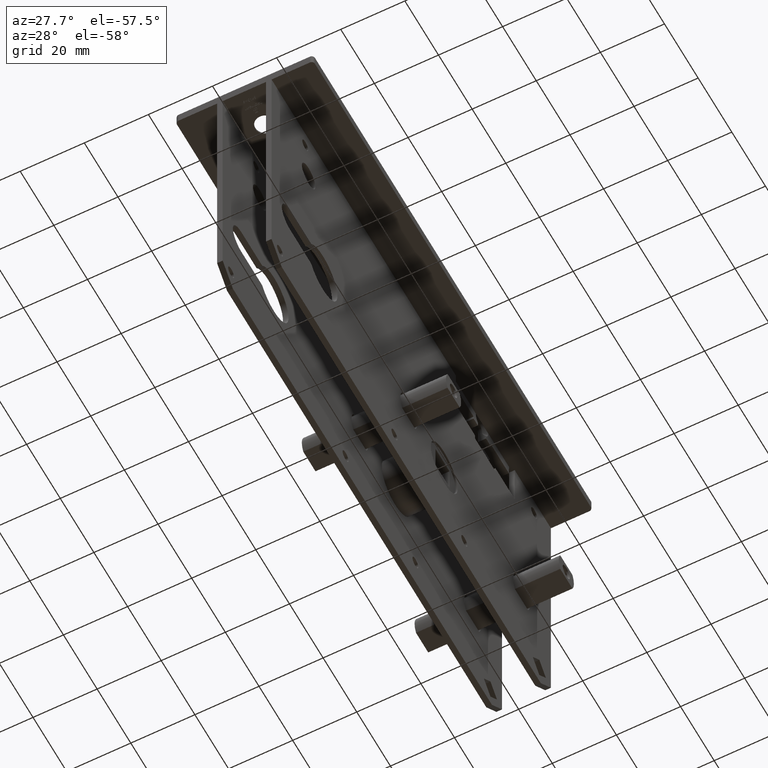
[diagram: clean part render]
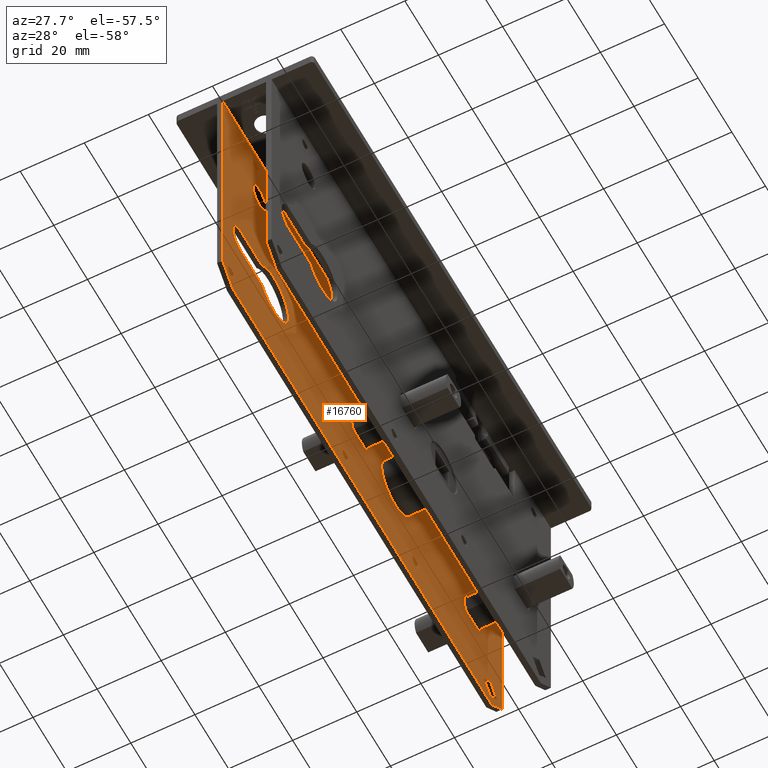
[diagram: same view with one face highlighted and labeled with its STEP entity id]
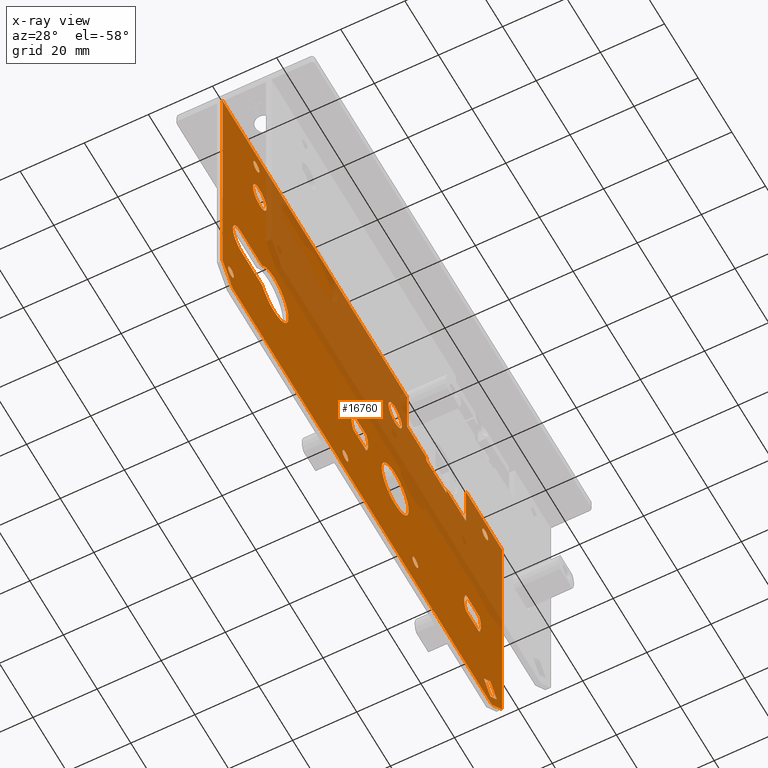
[diagram: x-ray of the same camera — body ghosted, the highlighted face saturated]
A machine part, auxiliary view. The second image highlights one B-rep face of the part: STEP entity #16760.
The next image is the same camera in x-ray: the body ghosted, the highlighted face saturated — about 40% of this face is hidden behind the body in this view.
In plain terms, the highlighted planar face has unit normal (-1, -0, 0).
Its self-contained STEP definition (entity closure, byte-faithful):
#20 = CARTESIAN_POINT ( 'NONE',  ( -6.749999999999976907, 2.428203230275483016, -54.49999999999999289 ) ) ;
#37 = VECTOR ( 'NONE', #3341, 1000.000000000000000 ) ;
#58 = ORIENTED_EDGE ( 'NONE', *, *, #6565, .T. ) ;
#85 = CARTESIAN_POINT ( 'NONE',  ( -6.749999999999975131, -64.75000000000001421, -7.500000000000007105 ) ) ;
#91 = DIRECTION ( 'NONE',  ( 0.000000000000000000, -1.000000000000000000, 0.000000000000000000 ) ) ;
#195 = CIRCLE ( 'NONE', #10051, 8.000000000000000000 ) ;
#261 = EDGE_CURVE ( 'NONE', #5920, #5920, #5274, .T. ) ;
#288 = AXIS2_PLACEMENT_3D ( 'NONE', #3002, #12196, #6062 ) ;
#364 = DIRECTION ( 'NONE',  ( -1.000000000000000000, -4.033302664442710394E-17, -0.000000000000000000 ) ) ;
#378 = CARTESIAN_POINT ( 'NONE',  ( -6.749999999999978684, 37.99500000000001876, -16.50000000000000000 ) ) ;
#432 = ORIENTED_EDGE ( 'NONE', *, *, #1139, .T. ) ;
#462 = EDGE_CURVE ( 'NONE', #2710, #15096, #10442, .T. ) ;
#503 = CARTESIAN_POINT ( 'NONE',  ( -6.749999999999979572, 82.99999999999998579, -1.500000000000000000 ) ) ;
#560 = DIRECTION ( 'NONE',  ( 0.000000000000000000, -1.000000000000000000, 0.000000000000000000 ) ) ;
#572 = LINE ( 'NONE', #916, #7490 ) ;
#636 = CARTESIAN_POINT ( 'NONE',  ( -6.749999999999978684, -71.90000000000000568, -53.45000000000000284 ) ) ;
#637 = EDGE_CURVE ( 'NONE', #5451, #17248, #14037, .T. ) ;
#663 = CARTESIAN_POINT ( 'NONE',  ( -6.749999999999978684, 37.99500000000001876, -89.50000000000000000 ) ) ;
#711 = VERTEX_POINT ( 'NONE', #11974 ) ;
#896 = EDGE_LOOP ( 'NONE', ( #7330 ) ) ;
#916 = CARTESIAN_POINT ( 'NONE',  ( -6.749999999999979572, 82.99999999999998579, -62.49999999999998579 ) ) ;
#917 = CARTESIAN_POINT ( 'NONE',  ( -6.749999999999979572, 68.49999999999997158, -58.49999999999999289 ) ) ;
#926 = AXIS2_PLACEMENT_3D ( 'NONE', #7827, #1676, #17077 ) ;
#959 = EDGE_LOOP ( 'NONE', ( #12661, #9739, #12631, #4550 ) ) ;
#960 = EDGE_CURVE ( 'NONE', #5687, #12507, #17785, .T. ) ;
#1014 = EDGE_CURVE ( 'NONE', #9640, #17106, #14490, .T. ) ;
#1072 = DIRECTION ( 'NONE',  ( -1.000000000000000000, -4.033302664442710394E-17, -0.000000000000000000 ) ) ;
#1086 = CARTESIAN_POINT ( 'NONE',  ( -6.749999999999979572, 82.99999999999998579, -54.49999999999999289 ) ) ;
#1109 = VERTEX_POINT ( 'NONE', #10029 ) ;
#1139 = EDGE_CURVE ( 'NONE', #10448, #9412, #7075, .T. ) ;
#1350 = CIRCLE ( 'NONE', #11359, 4.000000000000000000 ) ;
#1475 = DIRECTION ( 'NONE',  ( -1.000000000000000000, -4.033302664442710394E-17, 0.000000000000000000 ) ) ;
#1551 = ORIENTED_EDGE ( 'NONE', *, *, #8096, .T. ) ;
#1636 = VECTOR ( 'NONE', #4209, 1000.000000000000000 ) ;
#1676 = DIRECTION ( 'NONE',  ( -1.000000000000000000, -4.033302664442710394E-17, -0.000000000000000000 ) ) ;
#1804 = ORIENTED_EDGE ( 'NONE', *, *, #16912, .T. ) ;
#1968 = LINE ( 'NONE', #3349, #7936 ) ;
#2034 = VERTEX_POINT ( 'NONE', #6817 ) ;
#2048 = VECTOR ( 'NONE', #9706, 1000.000000000000000 ) ;
#2085 = VECTOR ( 'NONE', #17384, 1000.000000000000000 ) ;
#2097 = CARTESIAN_POINT ( 'NONE',  ( -6.749999999999976907, -11.75000000000001954, -82.49999999999998579 ) ) ;
#2249 = VERTEX_POINT ( 'NONE', #15557 ) ;
#2436 = CIRCLE ( 'NONE', #288, 7.999999999999998224 ) ;
#2451 = CARTESIAN_POINT ( 'NONE',  ( -6.749999999999979572, 82.99999999999998579, -89.50000000000000000 ) ) ;
#2461 = VECTOR ( 'NONE', #13312, 1000.000000000000000 ) ;
#2478 = EDGE_CURVE ( 'NONE', #10256, #5451, #11801, .T. ) ;
#2552 = CARTESIAN_POINT ( 'NONE',  ( -6.749999999999983125, 79.99999999999998579, -82.61091270347398563 ) ) ;
#2644 = CARTESIAN_POINT ( 'NONE',  ( -6.749999999999978684, 69.42820323027548568, -54.49999999999999289 ) ) ;
#2710 = VERTEX_POINT ( 'NONE', #636 ) ;
#2741 = ORIENTED_EDGE ( 'NONE', *, *, #12353, .F. ) ;
#2787 = ORIENTED_EDGE ( 'NONE', *, *, #7247, .T. ) ;
#2811 = CARTESIAN_POINT ( 'NONE',  ( -6.749999999999984901, 26.49500000000001876, -89.50000000000000000 ) ) ;
#2851 = DIRECTION ( 'NONE',  ( 0.000000000000000000, -1.000000000000000000, 0.000000000000000000 ) ) ;
#2919 = DIRECTION ( 'NONE',  ( -1.000000000000000000, -4.033302664442710394E-17, -0.000000000000000000 ) ) ;
#2987 = CIRCLE ( 'NONE', #926, 1.749999999999996447 ) ;
#3002 = CARTESIAN_POINT ( 'NONE',  ( -6.749999999999978684, 19.49999999999997513, -58.50000000000000000 ) ) ;
#3015 = AXIS2_PLACEMENT_3D ( 'NONE', #12429, #18777, #3506 ) ;
#3051 = EDGE_CURVE ( 'NONE', #15689, #15689, #2987, .T. ) ;
#3313 = CARTESIAN_POINT ( 'NONE',  ( -6.749999999999978684, 31.49999999999997868, -79.50000000000000000 ) ) ;
#3327 = VERTEX_POINT ( 'NONE', #85 ) ;
#3341 = DIRECTION ( 'NONE',  ( 4.033302664442710394E-17, -1.000000000000000000, 0.000000000000000000 ) ) ;
#3349 = CARTESIAN_POINT ( 'NONE',  ( -6.749999999999975131, 500000.0000000000582, -16.50000000000000000 ) ) ;
#3372 = DIRECTION ( 'NONE',  ( 2.851975664605210409E-17, -0.7071067811865474617, 0.7071067811865474617 ) ) ;
#3506 = DIRECTION ( 'NONE',  ( 0.000000000000000000, -1.000000000000000000, 0.000000000000000000 ) ) ;
#3517 = AXIS2_PLACEMENT_3D ( 'NONE', #917, #17923, #19243 ) ;
#3701 = VERTEX_POINT ( 'NONE', #16849 ) ;
#3750 = VERTEX_POINT ( 'NONE', #13819 ) ;
#3794 = DIRECTION ( 'NONE',  ( -4.033302664442710394E-17, 1.000000000000000000, 0.000000000000000000 ) ) ;
#4018 = VERTEX_POINT ( 'NONE', #15110 ) ;
#4166 = CARTESIAN_POINT ( 'NONE',  ( -6.749999999999979572, 76.11091270347397142, -78.72182540694797126 ) ) ;
#4203 = DIRECTION ( 'NONE',  ( -4.033302664442710394E-17, 1.000000000000000000, -8.832147291193703580E-16 ) ) ;
#4209 = DIRECTION ( 'NONE',  ( -0.000000000000000000, -0.000000000000000000, 1.000000000000000000 ) ) ;
#4327 = CARTESIAN_POINT ( 'NONE',  ( -6.749999999999975131, 500000.0000000000582, -16.50000000000000000 ) ) ;
#4331 = CARTESIAN_POINT ( 'NONE',  ( -6.749999999999979572, 71.25000000000000000, -7.500000000000007105 ) ) ;
#4400 = VERTEX_POINT ( 'NONE', #9330 ) ;
#4427 = DIRECTION ( 'NONE',  ( -4.033302664442710394E-17, 1.000000000000000000, 0.000000000000000000 ) ) ;
#4507 = CARTESIAN_POINT ( 'NONE',  ( -6.749999999999979572, 78.05545635173697860, -84.55545635173699281 ) ) ;
#4550 = ORIENTED_EDGE ( 'NONE', *, *, #5790, .T. ) ;
#4569 = ORIENTED_EDGE ( 'NONE', *, *, #3051, .T. ) ;
#4652 = VECTOR ( 'NONE', #13139, 1000.000000000000000 ) ;
#5043 = ORIENTED_EDGE ( 'NONE', *, *, #7267, .T. ) ;
#5165 = CARTESIAN_POINT ( 'NONE',  ( -6.749999999999978684, 61.49500000000001876, -89.50000000000000000 ) ) ;
#5213 = CARTESIAN_POINT ( 'NONE',  ( -6.749999999999975131, -52.50000000000002132, -58.50000000000000000 ) ) ;
#5274 = CIRCLE ( 'NONE', #12561, 4.000000000000003553 ) ;
#5317 = LINE ( 'NONE', #10474, #13938 ) ;
#5451 = VERTEX_POINT ( 'NONE', #16311 ) ;
#5682 = VERTEX_POINT ( 'NONE', #12536 ) ;
#5687 = VERTEX_POINT ( 'NONE', #15794 ) ;
#5701 = LINE ( 'NONE', #2811, #1636 ) ;
#5725 = DIRECTION ( 'NONE',  ( 4.033302664442710394E-17, -1.000000000000000000, -1.766429458238740716E-15 ) ) ;
#5790 = EDGE_CURVE ( 'NONE', #9402, #9106, #19450, .T. ) ;
#5834 = ORIENTED_EDGE ( 'NONE', *, *, #17071, .T. ) ;
#5877 = EDGE_LOOP ( 'NONE', ( #13785, #7149, #6720, #18267 ) ) ;
#5920 = VERTEX_POINT ( 'NONE', #10025 ) ;
#6034 = DIRECTION ( 'NONE',  ( 4.033302664442710394E-17, -1.000000000000000000, -2.891205793294678326E-16 ) ) ;
#6045 = CARTESIAN_POINT ( 'NONE',  ( -6.749999999999976907, -4.500000000000025757, -58.50000000000000000 ) ) ;
#6055 = CARTESIAN_POINT ( 'NONE',  ( -6.749999999999975131, -61.00000000000001421, -20.50000000000000355 ) ) ;
#6062 = DIRECTION ( 'NONE',  ( 0.000000000000000000, -1.000000000000000000, 0.000000000000000000 ) ) ;
#6097 = DIRECTION ( 'NONE',  ( -1.000000000000000000, -4.033302664442710394E-17, -0.000000000000000000 ) ) ;
#6164 = LINE ( 'NONE', #663, #2085 ) ;
#6169 = CARTESIAN_POINT ( 'NONE',  ( -6.749999999999979572, 62.49999999999997158, -58.49999999999999289 ) ) ;
#6170 = EDGE_CURVE ( 'NONE', #19524, #711, #1968, .T. ) ;
#6278 = LINE ( 'NONE', #8612, #12475 ) ;
#6326 = ORIENTED_EDGE ( 'NONE', *, *, #8069, .F. ) ;
#6344 = EDGE_CURVE ( 'NONE', #16661, #12989, #5317, .T. ) ;
#6419 = CARTESIAN_POINT ( 'NONE',  ( -6.749999999999978684, 61.49500000000001876, -1.500000000000000000 ) ) ;
#6454 = VERTEX_POINT ( 'NONE', #503 ) ;
#6517 = AXIS2_PLACEMENT_3D ( 'NONE', #6169, #6097, #91 ) ;
#6529 = DIRECTION ( 'NONE',  ( 4.033302664442710394E-17, -1.000000000000000000, 0.000000000000000000 ) ) ;
#6551 = ORIENTED_EDGE ( 'NONE', *, *, #6170, .T. ) ;
#6565 = EDGE_CURVE ( 'NONE', #18912, #5682, #6278, .T. ) ;
#6583 = DIRECTION ( 'NONE',  ( -1.000000000000000000, -4.033302664442710394E-17, -0.000000000000000000 ) ) ;
#6682 = EDGE_CURVE ( 'NONE', #3701, #9402, #18924, .T. ) ;
#6684 = ORIENTED_EDGE ( 'NONE', *, *, #13114, .T. ) ;
#6720 = ORIENTED_EDGE ( 'NONE', *, *, #12131, .T. ) ;
#6769 = LINE ( 'NONE', #16784, #18947 ) ;
#6817 = CARTESIAN_POINT ( 'NONE',  ( -6.749999999999981348, 69.42820323027548568, -62.49999999999998579 ) ) ;
#7075 = LINE ( 'NONE', #13500, #17310 ) ;
#7095 = AXIS2_PLACEMENT_3D ( 'NONE', #15466, #18464, #9392 ) ;
#7097 = ORIENTED_EDGE ( 'NONE', *, *, #9711, .T. ) ;
#7149 = ORIENTED_EDGE ( 'NONE', *, *, #9530, .T. ) ;
#7175 = LINE ( 'NONE', #8178, #12195 ) ;
#7217 = ORIENTED_EDGE ( 'NONE', *, *, #18558, .T. ) ;
#7247 = EDGE_CURVE ( 'NONE', #17570, #16303, #11985, .T. ) ;
#7267 = EDGE_CURVE ( 'NONE', #9412, #3750, #16042, .T. ) ;
#7330 = ORIENTED_EDGE ( 'NONE', *, *, #18299, .T. ) ;
#7490 = VECTOR ( 'NONE', #13205, 1000.000000000000000 ) ;
#7533 = EDGE_LOOP ( 'NONE', ( #4569 ) ) ;
#7718 = EDGE_LOOP ( 'NONE', ( #6684 ) ) ;
#7735 = LINE ( 'NONE', #17659, #19201 ) ;
#7749 = CARTESIAN_POINT ( 'NONE',  ( -6.749999999999978684, 11.49999999999997691, -58.50000000000000000 ) ) ;
#7750 = EDGE_LOOP ( 'NONE', ( #12466 ) ) ;
#7827 = CARTESIAN_POINT ( 'NONE',  ( -6.749999999999976907, -10.00000000000002309, -82.49999999999998579 ) ) ;
#7919 = VECTOR ( 'NONE', #19806, 1000.000000000000114 ) ;
#7936 = VECTOR ( 'NONE', #12471, 1000.000000000000000 ) ;
#8033 = ORIENTED_EDGE ( 'NONE', *, *, #261, .T. ) ;
#8069 = EDGE_CURVE ( 'NONE', #5687, #4400, #19375, .T. ) ;
#8096 = EDGE_CURVE ( 'NONE', #6454, #17106, #7175, .T. ) ;
#8097 = CIRCLE ( 'NONE', #3015, 1.750000000000001554 ) ;
#8164 = AXIS2_PLACEMENT_3D ( 'NONE', #9726, #6583, #560 ) ;
#8178 = CARTESIAN_POINT ( 'NONE',  ( -6.749999999999979572, 82.99999999999998579, -1.500000000000000000 ) ) ;
#8300 = CIRCLE ( 'NONE', #6517, 8.000000000000007105 ) ;
#8305 = CARTESIAN_POINT ( 'NONE',  ( -6.749999999999979572, -5.428203230275520319, -54.49999999999997868 ) ) ;
#8562 = FACE_BOUND ( 'NONE', #11112, .T. ) ;
#8595 = DIRECTION ( 'NONE',  ( 1.120265522029953459E-16, 0.7071067811865466846, -0.7071067811865483499 ) ) ;
#8612 = CARTESIAN_POINT ( 'NONE',  ( -6.749999999999979572, 82.99999999999998579, -63.55000000000001137 ) ) ;
#8670 = VECTOR ( 'NONE', #3372, 1000.000000000000114 ) ;
#8683 = DIRECTION ( 'NONE',  ( 4.033302664442710394E-17, -1.000000000000000000, 0.000000000000000000 ) ) ;
#8689 = LINE ( 'NONE', #2451, #4652 ) ;
#8889 = VECTOR ( 'NONE', #4203, 1000.000000000000000 ) ;
#8950 = ORIENTED_EDGE ( 'NONE', *, *, #18797, .T. ) ;
#8964 = EDGE_LOOP ( 'NONE', ( #16809 ) ) ;
#9061 = FACE_BOUND ( 'NONE', #7533, .T. ) ;
#9106 = VERTEX_POINT ( 'NONE', #8305 ) ;
#9140 = EDGE_CURVE ( 'NONE', #9733, #9733, #11791, .T. ) ;
#9214 = CARTESIAN_POINT ( 'NONE',  ( -6.749999999999973355, -79.75000000000002842, -82.49999999999998579 ) ) ;
#9226 = DIRECTION ( 'NONE',  ( -1.000000000000000000, -4.033302664442710394E-17, -0.000000000000000000 ) ) ;
#9238 = PLANE ( 'NONE',  #17536 ) ;
#9284 = DIRECTION ( 'NONE',  ( 0.000000000000000000, -1.000000000000000000, 0.000000000000000000 ) ) ;
#9330 = CARTESIAN_POINT ( 'NONE',  ( -6.750000000000001776, -76.99999999999998579, -89.50000000000000000 ) ) ;
#9356 = CARTESIAN_POINT ( 'NONE',  ( -6.749999999999973355, -71.90000000000000568, -58.50000000000000000 ) ) ;
#9392 = DIRECTION ( 'NONE',  ( 0.000000000000000000, -1.000000000000000000, 0.000000000000000000 ) ) ;
#9402 = VERTEX_POINT ( 'NONE', #12028 ) ;
#9412 = VERTEX_POINT ( 'NONE', #15054 ) ;
#9457 = ORIENTED_EDGE ( 'NONE', *, *, #1014, .F. ) ;
#9530 = EDGE_CURVE ( 'NONE', #17248, #2034, #8300, .T. ) ;
#9567 = DIRECTION ( 'NONE',  ( 0.000000000000000000, -1.000000000000000000, 0.000000000000000000 ) ) ;
#9616 = DIRECTION ( 'NONE',  ( -1.000000000000000000, -4.033302664442710394E-17, -0.000000000000000000 ) ) ;
#9640 = VERTEX_POINT ( 'NONE', #16138 ) ;
#9699 = CIRCLE ( 'NONE', #16141, 8.650000000000005684 ) ;
#9706 = DIRECTION ( 'NONE',  ( -0.000000000000000000, -0.000000000000000000, 1.000000000000000000 ) ) ;
#9711 = EDGE_CURVE ( 'NONE', #14751, #14751, #1350, .T. ) ;
#9726 = CARTESIAN_POINT ( 'NONE',  ( -6.749999999999979572, 73.00000000000000000, -7.500000000000007105 ) ) ;
#9733 = VERTEX_POINT ( 'NONE', #4331 ) ;
#9734 = CARTESIAN_POINT ( 'NONE',  ( -6.749999999999979572, 82.99999999999998579, -53.45000000000000284 ) ) ;
#9739 = ORIENTED_EDGE ( 'NONE', *, *, #19456, .T. ) ;
#9955 = VECTOR ( 'NONE', #4427, 1000.000000000000000 ) ;
#10025 = CARTESIAN_POINT ( 'NONE',  ( -6.749999999999975131, -65.00000000000001421, -20.50000000000000355 ) ) ;
#10029 = CARTESIAN_POINT ( 'NONE',  ( -6.749999999999983125, 76.11091270347397142, -86.50000000000000000 ) ) ;
#10049 = EDGE_LOOP ( 'NONE', ( #8033 ) ) ;
#10051 = AXIS2_PLACEMENT_3D ( 'NONE', #6045, #19754, #16903 ) ;
#10256 = VERTEX_POINT ( 'NONE', #10808 ) ;
#10384 = CARTESIAN_POINT ( 'NONE',  ( -6.749999999999979572, 84.94454364826299297, -87.55545635173699281 ) ) ;
#10424 = ORIENTED_EDGE ( 'NONE', *, *, #11598, .T. ) ;
#10442 = LINE ( 'NONE', #9734, #15667 ) ;
#10448 = VERTEX_POINT ( 'NONE', #15800 ) ;
#10474 = CARTESIAN_POINT ( 'NONE',  ( -6.749999999999984901, 26.49500000000001876, -1.500000000000000000 ) ) ;
#10512 = CIRCLE ( 'NONE', #11555, 5.049999999999998934 ) ;
#10582 = ORIENTED_EDGE ( 'NONE', *, *, #12117, .T. ) ;
#10726 = CARTESIAN_POINT ( 'NONE',  ( -6.749999999999979572, 82.99999999999998579, -89.50000000000000000 ) ) ;
#10736 = FACE_BOUND ( 'NONE', #959, .T. ) ;
#10808 = CARTESIAN_POINT ( 'NONE',  ( -6.749999999999983125, 61.57179676972446458, -62.49999999999998579 ) ) ;
#10835 = EDGE_CURVE ( 'NONE', #4018, #4018, #12800, .T. ) ;
#11081 = LINE ( 'NONE', #14473, #8670 ) ;
#11112 = EDGE_LOOP ( 'NONE', ( #17218 ) ) ;
#11255 = ORIENTED_EDGE ( 'NONE', *, *, #11559, .T. ) ;
#11285 = CARTESIAN_POINT ( 'NONE',  ( -6.749999999999984901, 26.49500000000001876, -1.500000000000000000 ) ) ;
#11359 = AXIS2_PLACEMENT_3D ( 'NONE', #12906, #9616, #17334 ) ;
#11555 = AXIS2_PLACEMENT_3D ( 'NONE', #9356, #364, #9567 ) ;
#11559 = EDGE_CURVE ( 'NONE', #16303, #1109, #13231, .T. ) ;
#11598 = EDGE_CURVE ( 'NONE', #1109, #14775, #11081, .T. ) ;
#11640 = CARTESIAN_POINT ( 'NONE',  ( -6.750000000000002665, -83.00000000000001421, -89.50000000000000000 ) ) ;
#11791 = CIRCLE ( 'NONE', #8164, 1.750000000000001554 ) ;
#11801 = CIRCLE ( 'NONE', #3517, 8.000000000000007105 ) ;
#11838 = CARTESIAN_POINT ( 'NONE',  ( -6.749999999999978684, 15.49999999999997513, -20.50000000000000355 ) ) ;
#11954 = DIRECTION ( 'NONE',  ( -0.000000000000000000, -1.000000000000000000, -0.000000000000000000 ) ) ;
#11962 = DIRECTION ( 'NONE',  ( 0.000000000000000000, -1.000000000000000000, 0.000000000000000000 ) ) ;
#11974 = CARTESIAN_POINT ( 'NONE',  ( -6.749999999999975131, 26.49500000000001876, -16.50000000000000000 ) ) ;
#11985 = LINE ( 'NONE', #10384, #7919 ) ;
#12028 = CARTESIAN_POINT ( 'NONE',  ( -6.749999999999979572, -5.428203230275524760, -62.50000000000001421 ) ) ;
#12040 = CARTESIAN_POINT ( 'NONE',  ( -6.749999999999979572, 82.99999999999997158, -18.09999999999999076 ) ) ;
#12117 = EDGE_CURVE ( 'NONE', #2249, #4400, #7735, .T. ) ;
#12131 = EDGE_CURVE ( 'NONE', #2034, #10256, #572, .T. ) ;
#12154 = DIRECTION ( 'NONE',  ( -1.749166204432143485E-31, 4.336808689942016158E-15, -1.000000000000000000 ) ) ;
#12195 = VECTOR ( 'NONE', #6529, 1000.000000000000000 ) ;
#12196 = DIRECTION ( 'NONE',  ( -1.000000000000000000, -4.033302664442710394E-17, -0.000000000000000000 ) ) ;
#12266 = DIRECTION ( 'NONE',  ( -2.851975664605210409E-17, 0.7071067811865474617, 0.7071067811865474617 ) ) ;
#12292 = CIRCLE ( 'NONE', #7095, 1.750000000000001554 ) ;
#12353 = EDGE_CURVE ( 'NONE', #2249, #12989, #14664, .T. ) ;
#12429 = CARTESIAN_POINT ( 'NONE',  ( -6.749999999999975131, -63.00000000000001421, -7.500000000000007105 ) ) ;
#12459 = CARTESIAN_POINT ( 'NONE',  ( -6.749999999999979572, 82.99999999999998579, -89.50000000000000000 ) ) ;
#12466 = ORIENTED_EDGE ( 'NONE', *, *, #10835, .T. ) ;
#12471 = DIRECTION ( 'NONE',  ( -0.000000000000000000, -1.000000000000000000, -0.000000000000000000 ) ) ;
#12475 = VECTOR ( 'NONE', #8683, 1000.000000000000000 ) ;
#12507 = VERTEX_POINT ( 'NONE', #18968 ) ;
#12536 = CARTESIAN_POINT ( 'NONE',  ( -6.749999999999976907, -71.90000000000000568, -63.54999999999999716 ) ) ;
#12561 = AXIS2_PLACEMENT_3D ( 'NONE', #6055, #2919, #2851 ) ;
#12606 = ORIENTED_EDGE ( 'NONE', *, *, #6344, .T. ) ;
#12631 = ORIENTED_EDGE ( 'NONE', *, *, #6682, .T. ) ;
#12661 = ORIENTED_EDGE ( 'NONE', *, *, #12664, .T. ) ;
#12664 = EDGE_CURVE ( 'NONE', #9106, #18639, #12958, .T. ) ;
#12693 = CARTESIAN_POINT ( 'NONE',  ( -6.749999999999979572, 76.99999999999995737, -89.50000000000000000 ) ) ;
#12800 = CIRCLE ( 'NONE', #15249, 1.749999999999998002 ) ;
#12847 = EDGE_CURVE ( 'NONE', #14775, #17570, #6769, .T. ) ;
#12853 = AXIS2_PLACEMENT_3D ( 'NONE', #15051, #1072, #11962 ) ;
#12906 = CARTESIAN_POINT ( 'NONE',  ( -6.749999999999978684, 19.49999999999997513, -20.50000000000000355 ) ) ;
#12958 = LINE ( 'NONE', #14627, #8889 ) ;
#12989 = VERTEX_POINT ( 'NONE', #19021 ) ;
#13114 = EDGE_CURVE ( 'NONE', #17350, #17350, #2436, .T. ) ;
#13123 = FACE_BOUND ( 'NONE', #19788, .T. ) ;
#13139 = DIRECTION ( 'NONE',  ( -0.000000000000000000, -0.000000000000000000, 1.000000000000000000 ) ) ;
#13205 = DIRECTION ( 'NONE',  ( 4.033302664442710394E-17, -1.000000000000000000, 0.000000000000000000 ) ) ;
#13231 = LINE ( 'NONE', #4507, #17269 ) ;
#13312 = DIRECTION ( 'NONE',  ( -0.000000000000000000, -0.000000000000000000, 1.000000000000000000 ) ) ;
#13500 = CARTESIAN_POINT ( 'NONE',  ( -6.749999999999978684, 49.99500000000033850, -89.50000000000014211 ) ) ;
#13730 = DIRECTION ( 'NONE',  ( 4.033302664442710394E-17, -1.000000000000000000, 0.000000000000000000 ) ) ;
#13785 = ORIENTED_EDGE ( 'NONE', *, *, #637, .T. ) ;
#13819 = CARTESIAN_POINT ( 'NONE',  ( -6.749999999999981348, 37.99500000000001876, -18.10000000000000142 ) ) ;
#13938 = VECTOR ( 'NONE', #15081, 1000.000000000000000 ) ;
#14017 = VECTOR ( 'NONE', #18584, 1000.000000000000114 ) ;
#14037 = LINE ( 'NONE', #1086, #9955 ) ;
#14090 = ORIENTED_EDGE ( 'NONE', *, *, #18292, .T. ) ;
#14101 = FACE_BOUND ( 'NONE', #17360, .T. ) ;
#14473 = CARTESIAN_POINT ( 'NONE',  ( -6.749999999999979572, 81.05545635173697860, -91.44454364826300719 ) ) ;
#14490 = LINE ( 'NONE', #5165, #2048 ) ;
#14627 = CARTESIAN_POINT ( 'NONE',  ( -6.749999999999979572, 83.00000000000001421, -54.50000000000006395 ) ) ;
#14664 = LINE ( 'NONE', #11640, #2461 ) ;
#14751 = VERTEX_POINT ( 'NONE', #11838 ) ;
#14775 = VERTEX_POINT ( 'NONE', #18852 ) ;
#14798 = FACE_BOUND ( 'NONE', #896, .T. ) ;
#14814 = FACE_BOUND ( 'NONE', #7750, .T. ) ;
#14982 = CARTESIAN_POINT ( 'NONE',  ( -6.749999999999978684, -59.52281994643179530, -63.55000000000001137 ) ) ;
#15051 = CARTESIAN_POINT ( 'NONE',  ( -6.749999999999976907, 1.499999999999974465, -58.50000000000000000 ) ) ;
#15054 = CARTESIAN_POINT ( 'NONE',  ( -6.749999999999981348, 49.99500000000002586, -18.09999999999999787 ) ) ;
#15081 = DIRECTION ( 'NONE',  ( -1.584294694713737214E-16, -1.000000000000000000, 0.000000000000000000 ) ) ;
#15096 = VERTEX_POINT ( 'NONE', #17194 ) ;
#15110 = CARTESIAN_POINT ( 'NONE',  ( -6.749999999999978684, 29.74999999999998224, -79.50000000000000000 ) ) ;
#15176 = ORIENTED_EDGE ( 'NONE', *, *, #12847, .T. ) ;
#15249 = AXIS2_PLACEMENT_3D ( 'NONE', #3313, #9226, #9284 ) ;
#15272 = FACE_BOUND ( 'NONE', #8964, .T. ) ;
#15364 = ORIENTED_EDGE ( 'NONE', *, *, #17238, .T. ) ;
#15466 = CARTESIAN_POINT ( 'NONE',  ( -6.749999999999973355, -78.00000000000002842, -82.49999999999998579 ) ) ;
#15557 = CARTESIAN_POINT ( 'NONE',  ( -6.750000000000002665, -83.00000000000001421, -83.49999999999994316 ) ) ;
#15667 = VECTOR ( 'NONE', #3794, 1000.000000000000000 ) ;
#15689 = VERTEX_POINT ( 'NONE', #2097 ) ;
#15794 = CARTESIAN_POINT ( 'NONE',  ( -6.749999999999979572, 76.99999999999995737, -89.50000000000000000 ) ) ;
#15800 = CARTESIAN_POINT ( 'NONE',  ( -6.749999999999978684, 49.99500000000001876, -16.49999999999999645 ) ) ;
#16042 = LINE ( 'NONE', #12040, #19644 ) ;
#16138 = CARTESIAN_POINT ( 'NONE',  ( -6.749999999999978684, 61.49500000000001876, -16.50000000000000000 ) ) ;
#16141 = AXIS2_PLACEMENT_3D ( 'NONE', #5213, #19099, #18963 ) ;
#16303 = VERTEX_POINT ( 'NONE', #2552 ) ;
#16311 = CARTESIAN_POINT ( 'NONE',  ( -6.749999999999981348, 61.57179676972446458, -54.49999999999999289 ) ) ;
#16484 = ORIENTED_EDGE ( 'NONE', *, *, #462, .T. ) ;
#16661 = VERTEX_POINT ( 'NONE', #11285 ) ;
#16760 = ADVANCED_FACE ( 'NONE', ( #13123, #17155, #18847, #18100, #8562, #9061, #14814, #15272, #14798, #19338, #10736, #14101, #18348 ), #9238, .F. ) ;
#16784 = CARTESIAN_POINT ( 'NONE',  ( -6.749999999999979572, 74.16636905521096423, -80.66636905521097844 ) ) ;
#16809 = ORIENTED_EDGE ( 'NONE', *, *, #9140, .T. ) ;
#16849 = CARTESIAN_POINT ( 'NONE',  ( -6.749999999999979572, 2.428203230275483016, -62.50000000000000000 ) ) ;
#16903 = DIRECTION ( 'NONE',  ( 0.000000000000000000, -1.000000000000000000, 0.000000000000000000 ) ) ;
#16912 = EDGE_CURVE ( 'NONE', #9640, #10448, #17832, .T. ) ;
#17071 = EDGE_CURVE ( 'NONE', #15096, #18912, #9699, .T. ) ;
#17077 = DIRECTION ( 'NONE',  ( 0.000000000000000000, -1.000000000000000000, 0.000000000000000000 ) ) ;
#17106 = VERTEX_POINT ( 'NONE', #6419 ) ;
#17155 = FACE_BOUND ( 'NONE', #10049, .T. ) ;
#17194 = CARTESIAN_POINT ( 'NONE',  ( -6.749999999999974243, -59.52281994643179530, -53.45000000000000284 ) ) ;
#17218 = ORIENTED_EDGE ( 'NONE', *, *, #17366, .T. ) ;
#17226 = VECTOR ( 'NONE', #5725, 1000.000000000000000 ) ;
#17238 = EDGE_CURVE ( 'NONE', #12507, #6454, #8689, .T. ) ;
#17248 = VERTEX_POINT ( 'NONE', #2644 ) ;
#17269 = VECTOR ( 'NONE', #18314, 1000.000000000000114 ) ;
#17310 = VECTOR ( 'NONE', #12154, 1000.000000000000000 ) ;
#17334 = DIRECTION ( 'NONE',  ( 0.000000000000000000, -1.000000000000000000, 0.000000000000000000 ) ) ;
#17350 = VERTEX_POINT ( 'NONE', #7749 ) ;
#17360 = EDGE_LOOP ( 'NONE', ( #15176, #2787, #11255, #10424 ) ) ;
#17366 = EDGE_CURVE ( 'NONE', #18592, #18592, #12292, .T. ) ;
#17384 = DIRECTION ( 'NONE',  ( 0.000000000000000000, 0.000000000000000000, 1.000000000000000000 ) ) ;
#17411 = EDGE_LOOP ( 'NONE', ( #16484, #5834, #58, #14090 ) ) ;
#17536 = AXIS2_PLACEMENT_3D ( 'NONE', #10726, #1475, #13730 ) ;
#17570 = VERTEX_POINT ( 'NONE', #4166 ) ;
#17659 = CARTESIAN_POINT ( 'NONE',  ( -6.750000000000001776, -76.99999999999998579, -89.50000000000000000 ) ) ;
#17778 = CARTESIAN_POINT ( 'NONE',  ( -6.749999999999979572, 82.99999999999994316, -62.49999999999985789 ) ) ;
#17785 = LINE ( 'NONE', #12693, #14017 ) ;
#17832 = LINE ( 'NONE', #4327, #19071 ) ;
#17923 = DIRECTION ( 'NONE',  ( -1.000000000000000000, -4.033302664442710394E-17, -0.000000000000000000 ) ) ;
#18100 = FACE_BOUND ( 'NONE', #7718, .T. ) ;
#18267 = ORIENTED_EDGE ( 'NONE', *, *, #2478, .T. ) ;
#18292 = EDGE_CURVE ( 'NONE', #5682, #2710, #10512, .T. ) ;
#18299 = EDGE_CURVE ( 'NONE', #3327, #3327, #8097, .T. ) ;
#18314 = DIRECTION ( 'NONE',  ( 2.851975664605210409E-17, -0.7071067811865474617, -0.7071067811865474617 ) ) ;
#18348 = FACE_OUTER_BOUND ( 'NONE', #19411, .T. ) ;
#18464 = DIRECTION ( 'NONE',  ( -1.000000000000000000, -4.033302664442710394E-17, -0.000000000000000000 ) ) ;
#18558 = EDGE_CURVE ( 'NONE', #711, #16661, #5701, .T. ) ;
#18584 = DIRECTION ( 'NONE',  ( -2.851975664605203630E-17, 0.7071067811865459074, 0.7071067811865491270 ) ) ;
#18592 = VERTEX_POINT ( 'NONE', #9214 ) ;
#18639 = VERTEX_POINT ( 'NONE', #20 ) ;
#18702 = ORIENTED_EDGE ( 'NONE', *, *, #960, .T. ) ;
#18777 = DIRECTION ( 'NONE',  ( -1.000000000000000000, -4.033302664442710394E-17, -0.000000000000000000 ) ) ;
#18797 = EDGE_CURVE ( 'NONE', #3750, #19524, #6164, .T. ) ;
#18847 = FACE_BOUND ( 'NONE', #17411, .T. ) ;
#18852 = CARTESIAN_POINT ( 'NONE',  ( -6.749999999999983125, 72.22182540694797126, -82.61091270347398563 ) ) ;
#18912 = VERTEX_POINT ( 'NONE', #14982 ) ;
#18924 = LINE ( 'NONE', #17778, #17226 ) ;
#18947 = VECTOR ( 'NONE', #12266, 1000.000000000000114 ) ;
#18963 = DIRECTION ( 'NONE',  ( 0.000000000000000000, -1.000000000000000000, 0.000000000000000000 ) ) ;
#18968 = CARTESIAN_POINT ( 'NONE',  ( -6.749999999999979572, 82.99999999999998579, -83.49999999999992895 ) ) ;
#19021 = CARTESIAN_POINT ( 'NONE',  ( -6.750000000000002665, -83.00000000000001421, -1.500000000000000000 ) ) ;
#19071 = VECTOR ( 'NONE', #11954, 1000.000000000000000 ) ;
#19099 = DIRECTION ( 'NONE',  ( -1.000000000000000000, -4.033302664442710394E-17, -0.000000000000000000 ) ) ;
#19201 = VECTOR ( 'NONE', #8595, 1000.000000000000000 ) ;
#19243 = DIRECTION ( 'NONE',  ( 0.000000000000000000, -1.000000000000000000, 0.000000000000000000 ) ) ;
#19338 = FACE_BOUND ( 'NONE', #5877, .T. ) ;
#19375 = LINE ( 'NONE', #12459, #37 ) ;
#19411 = EDGE_LOOP ( 'NONE', ( #1804, #432, #5043, #8950, #6551, #7217, #12606, #2741, #10582, #6326, #18702, #15364, #1551, #9457 ) ) ;
#19450 = CIRCLE ( 'NONE', #12853, 7.999999999999998224 ) ;
#19456 = EDGE_CURVE ( 'NONE', #18639, #3701, #195, .T. ) ;
#19524 = VERTEX_POINT ( 'NONE', #378 ) ;
#19644 = VECTOR ( 'NONE', #6034, 1000.000000000000000 ) ;
#19754 = DIRECTION ( 'NONE',  ( -1.000000000000000000, -4.033302664442710394E-17, -0.000000000000000000 ) ) ;
#19788 = EDGE_LOOP ( 'NONE', ( #7097 ) ) ;
#19806 = DIRECTION ( 'NONE',  ( -2.851975664605210409E-17, 0.7071067811865474617, -0.7071067811865474617 ) ) ;